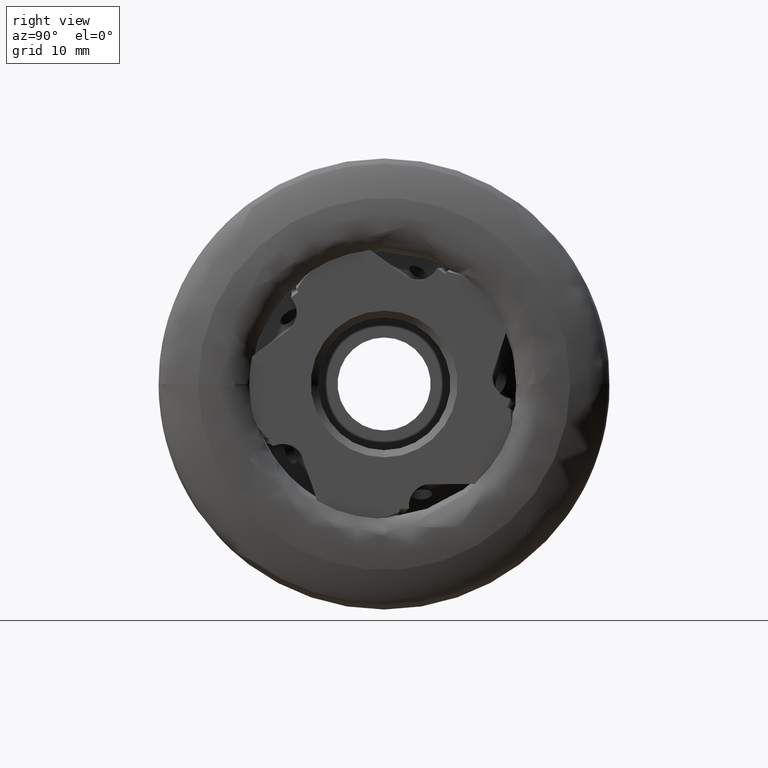
[diagram: clean part render]
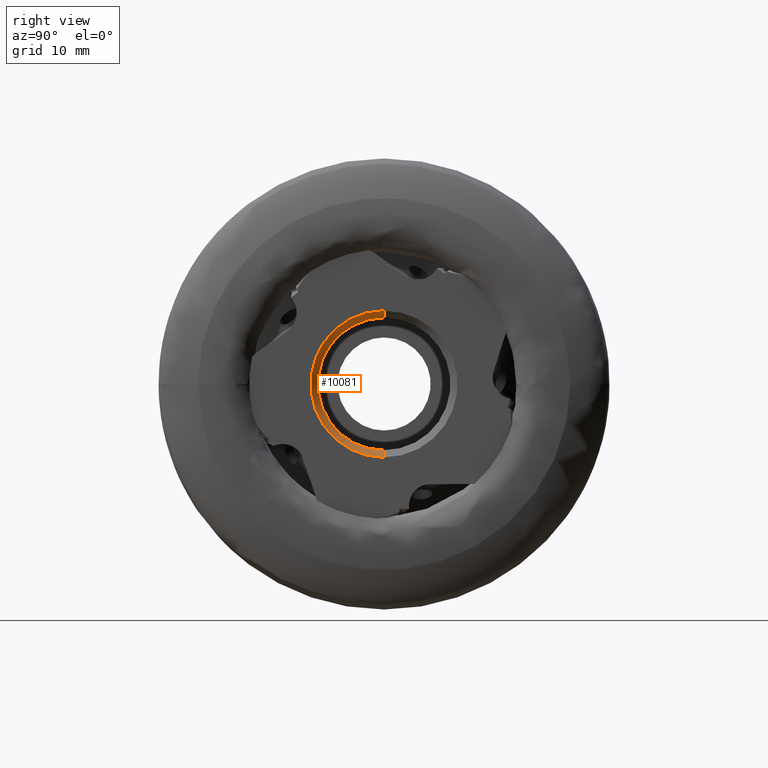
[diagram: same view with one face highlighted and labeled with its STEP entity id]
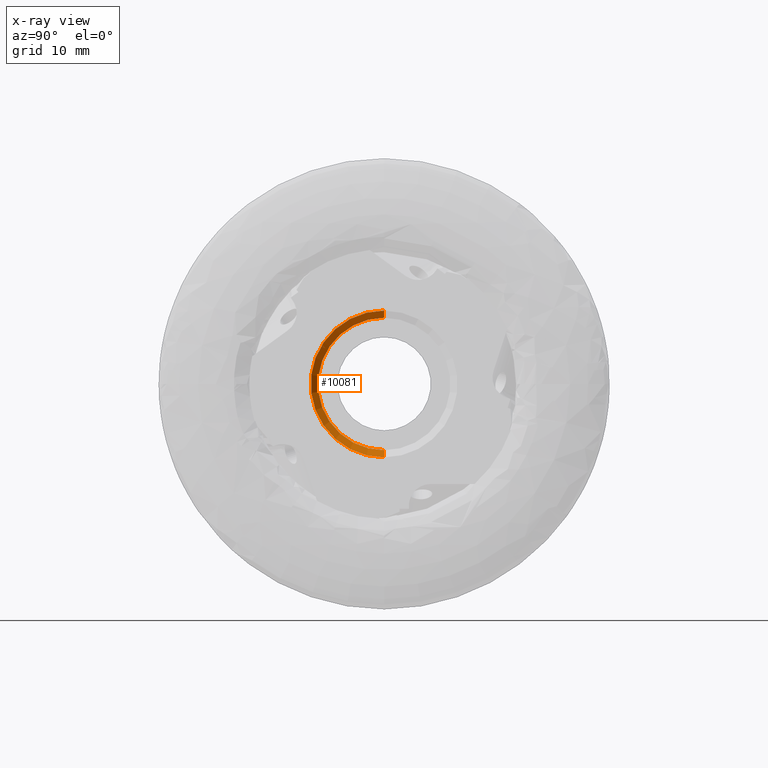
[diagram: x-ray of the same camera — body ghosted, the highlighted face saturated]
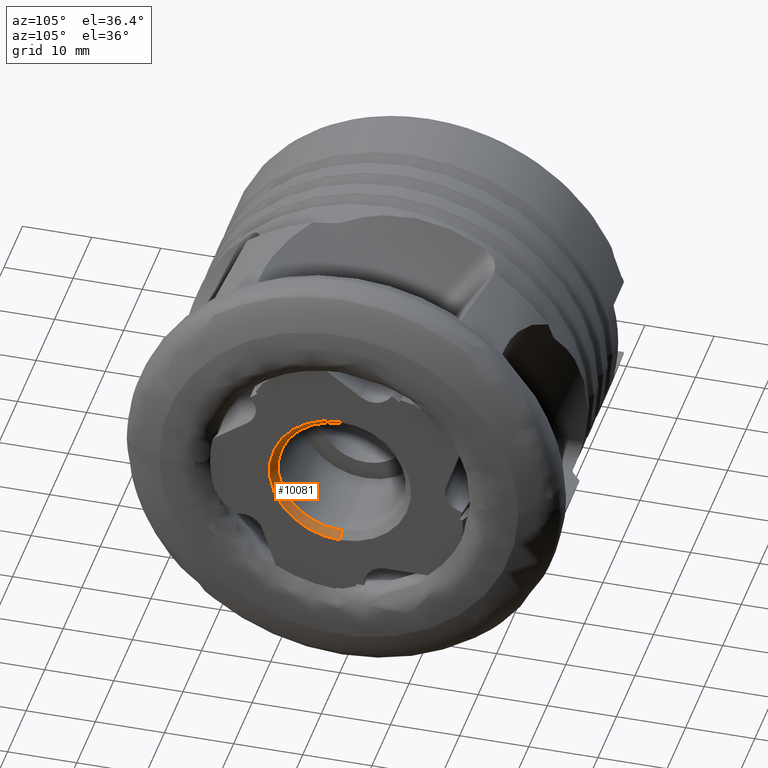
[diagram: same view with one face highlighted and labeled with its STEP entity id]
A machine part, right view. The second image highlights one B-rep face of the part: STEP entity #10081.
The next image is the same camera in x-ray: the body ghosted, the highlighted face saturated — about 0% of this face is hidden behind the body in this view.
A second angle (auxiliary view) of the same face is appended — the face is thin or edge-on in the first view.
In plain terms, the highlighted conical surface has half-angle 45 deg.
Its self-contained STEP definition (entity closure, byte-faithful):
#265 = FACE_OUTER_BOUND ( 'NONE', #1441, .T. ) ;
#272 = CONICAL_SURFACE ( 'NONE', #8732, 10.25000000000000400, 0.7853981633974505000 ) ;
#331 = CARTESIAN_POINT ( 'NONE',  ( -1.300000000000000000, 1.194030629168669700E-015, 9.250000000000000000 ) ) ;
#337 = CARTESIAN_POINT ( 'NONE',  ( -0.2999999999999999900, 1.255262969126037400E-015, 10.25000000000000400 ) ) ;
#708 = ORIENTED_EDGE ( 'NONE', *, *, #3521, .F. ) ;
#720 = ORIENTED_EDGE ( 'NONE', *, *, #3519, .T. ) ;
#810 = CARTESIAN_POINT ( 'NONE',  ( -1.300000000000000000, 0.0000000000000000000, -9.250000000000000000 ) ) ;
#831 = CARTESIAN_POINT ( 'NONE',  ( -0.2999999999999999900, 0.0000000000000000000, -10.25000000000000400 ) ) ;
#934 = ORIENTED_EDGE ( 'NONE', *, *, #3435, .F. ) ;
#1441 = EDGE_LOOP ( 'NONE', ( #934, #720, #1807, #708 ) ) ;
#1807 = ORIENTED_EDGE ( 'NONE', *, *, #3522, .T. ) ;
#2556 = VERTEX_POINT ( 'NONE', #810 ) ;
#2645 = VERTEX_POINT ( 'NONE', #831 ) ;
#2713 = VERTEX_POINT ( 'NONE', #331 ) ;
#2722 = VERTEX_POINT ( 'NONE', #337 ) ;
#3435 = EDGE_CURVE ( 'NONE', #2713, #2556, #5027, .T. ) ;
#3519 = EDGE_CURVE ( 'NONE', #2713, #2722, #4148, .T. ) ;
#3521 = EDGE_CURVE ( 'NONE', #2556, #2645, #4150, .T. ) ;
#3522 = EDGE_CURVE ( 'NONE', #2722, #2645, #4153, .T. ) ;
#3780 = CARTESIAN_POINT ( 'NONE',  ( -1.300000000000000000, 0.0000000000000000000, 0.0000000000000000000 ) ) ;
#3781 = DIRECTION ( 'NONE',  ( 1.000000000000000000, -0.0000000000000000000, -0.0000000000000000000 ) ) ;
#3782 = DIRECTION ( 'NONE',  ( 0.0000000000000000000, 0.0000000000000000000, -1.000000000000000000 ) ) ;
#4148 = LINE ( 'NONE', #9159, #4149 ) ;
#4149 = VECTOR ( 'NONE', #9160, 1000.000000000000100 ) ;
#4150 = LINE ( 'NONE', #9162, #4154 ) ;
#4153 = CIRCLE ( 'NONE', #8490, 10.25000000000000400 ) ;
#4154 = VECTOR ( 'NONE', #9163, 1000.000000000000100 ) ;
#5027 = CIRCLE ( 'NONE', #8475, 9.250000000000000000 ) ;
#7235 = DIRECTION ( 'NONE',  ( 0.0000000000000000000, 0.0000000000000000000, -1.000000000000000000 ) ) ;
#7236 = CARTESIAN_POINT ( 'NONE',  ( -0.2999999999999999900, 0.0000000000000000000, 0.0000000000000000000 ) ) ;
#7237 = DIRECTION ( 'NONE',  ( 1.000000000000000000, -0.0000000000000000000, -0.0000000000000000000 ) ) ;
#8475 = AXIS2_PLACEMENT_3D ( 'NONE', #3780, #3781, #3782 ) ;
#8490 = AXIS2_PLACEMENT_3D ( 'NONE', #9166, #9167, #9168 ) ;
#8732 = AXIS2_PLACEMENT_3D ( 'NONE', #7236, #7237, #7235 ) ;
#9159 = CARTESIAN_POINT ( 'NONE',  ( -0.2999999999999999900, 1.255262969126037400E-015, 10.25000000000000400 ) ) ;
#9160 = DIRECTION ( 'NONE',  ( 0.7071067811865460200, 8.659560562354952600E-017, 0.7071067811865490200 ) ) ;
#9162 = CARTESIAN_POINT ( 'NONE',  ( -0.2999999999999999900, 0.0000000000000000000, -10.25000000000000400 ) ) ;
#9163 = DIRECTION ( 'NONE',  ( 0.7071067811865460200, 0.0000000000000000000, -0.7071067811865490200 ) ) ;
#9166 = CARTESIAN_POINT ( 'NONE',  ( -0.2999999999999999900, 0.0000000000000000000, 0.0000000000000000000 ) ) ;
#9167 = DIRECTION ( 'NONE',  ( 1.000000000000000000, -0.0000000000000000000, -0.0000000000000000000 ) ) ;
#9168 = DIRECTION ( 'NONE',  ( 0.0000000000000000000, 0.0000000000000000000, -1.000000000000000000 ) ) ;
#10081 = ADVANCED_FACE ( 'NONE', ( #265 ), #272, .F. ) ;